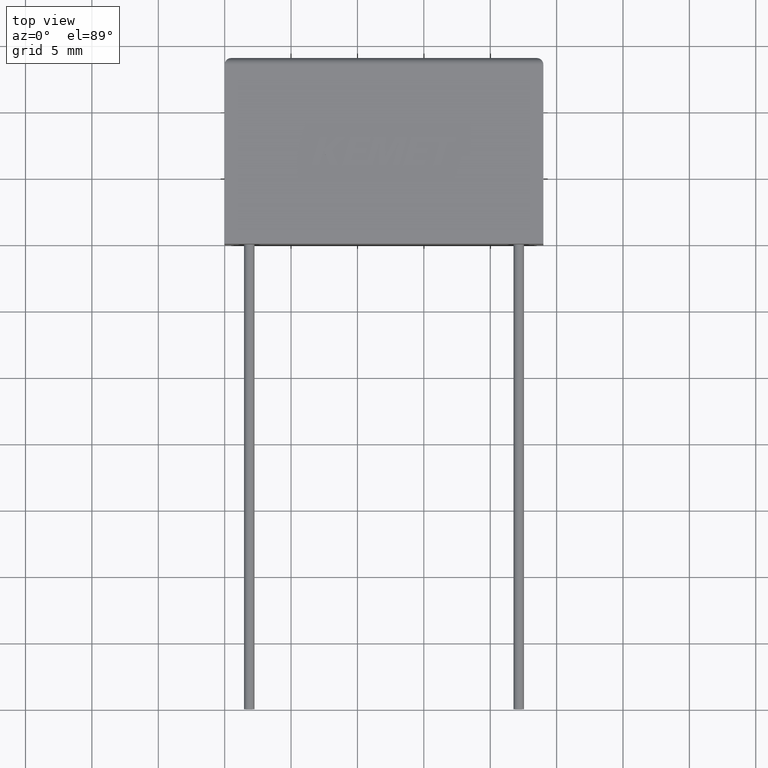
[diagram: clean part render]
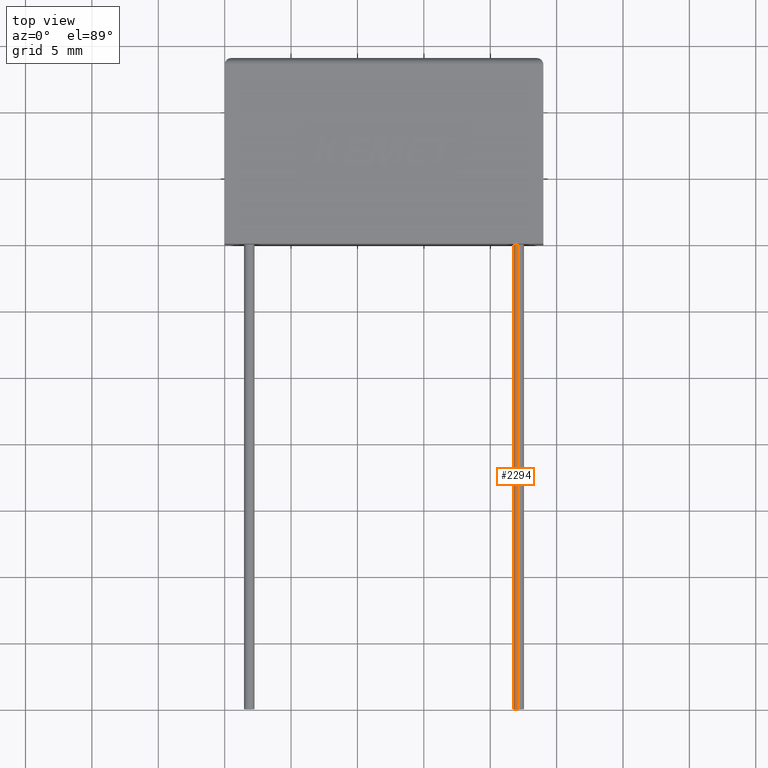
[diagram: same view with one face highlighted and labeled with its STEP entity id]
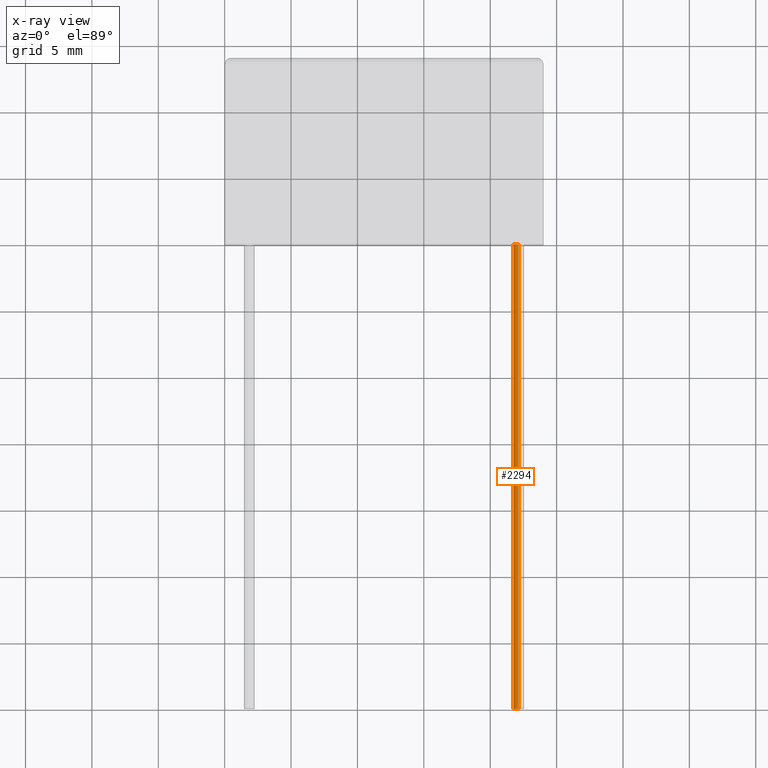
[diagram: x-ray of the same camera — body ghosted, the highlighted face saturated]
A machine part, top view. The second image highlights one B-rep face of the part: STEP entity #2294.
The next image is the same camera in x-ray: the body ghosted, the highlighted face saturated — about 0% of this face is hidden behind the body in this view.
In plain terms, the highlighted cylindrical surface (edge-blend (fillet) strip) has radius 0.4 mm, axis along (-0, 1, -0).
Its self-contained STEP definition (entity closure, byte-faithful):
#34 = CARTESIAN_POINT ( 'NONE',  ( 22.15000000000000200, 0.0000000000000000000, 3.800000000000000300 ) ) ;
#61 = CARTESIAN_POINT ( 'NONE',  ( 22.15000000000000200, 0.0000000000000000000, 4.200000000000000200 ) ) ;
#66 = AXIS2_PLACEMENT_3D ( 'NONE', #960, #1351, #1917 ) ;
#107 = CARTESIAN_POINT ( 'NONE',  ( 22.15000000000000200, -35.00000000000000000, 4.200000000000000200 ) ) ;
#168 = CARTESIAN_POINT ( 'NONE',  ( 22.15000000000000200, -35.00000000000000000, 3.800000000000000300 ) ) ;
#190 = VECTOR ( 'NONE', #404, 1000.000000000000000 ) ;
#404 = DIRECTION ( 'NONE',  ( -0.0000000000000000000, 1.000000000000000000, -0.0000000000000000000 ) ) ;
#431 = VECTOR ( 'NONE', #1911, 1000.000000000000000 ) ;
#584 = ORIENTED_EDGE ( 'NONE', *, *, #1234, .T. ) ;
#595 = DIRECTION ( 'NONE',  ( 0.0000000000000000000, 0.0000000000000000000, -1.000000000000000000 ) ) ;
#647 = VERTEX_POINT ( 'NONE', #705 ) ;
#680 = EDGE_LOOP ( 'NONE', ( #1134, #1246, #584, #1330 ) ) ;
#688 = VERTEX_POINT ( 'NONE', #61 ) ;
#705 = CARTESIAN_POINT ( 'NONE',  ( 22.15000000000000200, -35.00000000000000000, 3.399999999999999900 ) ) ;
#726 = LINE ( 'NONE', #1371, #190 ) ;
#770 = DIRECTION ( 'NONE',  ( -0.0000000000000000000, 1.000000000000000000, -0.0000000000000000000 ) ) ;
#811 = CARTESIAN_POINT ( 'NONE',  ( 22.15000000000000200, -35.00000000000000000, 4.200000000000000200 ) ) ;
#864 = LINE ( 'NONE', #811, #431 ) ;
#921 = EDGE_CURVE ( 'NONE', #647, #965, #726, .T. ) ;
#960 = CARTESIAN_POINT ( 'NONE',  ( 22.15000000000000200, -35.00000000000000000, 3.800000000000000300 ) ) ;
#965 = VERTEX_POINT ( 'NONE', #1597 ) ;
#982 = EDGE_CURVE ( 'NONE', #647, #1409, #1780, .T. ) ;
#1009 = AXIS2_PLACEMENT_3D ( 'NONE', #34, #1226, #1200 ) ;
#1134 = ORIENTED_EDGE ( 'NONE', *, *, #921, .F. ) ;
#1200 = DIRECTION ( 'NONE',  ( 0.0000000000000000000, 0.0000000000000000000, -1.000000000000000000 ) ) ;
#1226 = DIRECTION ( 'NONE',  ( -0.0000000000000000000, 1.000000000000000000, -0.0000000000000000000 ) ) ;
#1230 = AXIS2_PLACEMENT_3D ( 'NONE', #168, #770, #595 ) ;
#1234 = EDGE_CURVE ( 'NONE', #1409, #688, #864, .T. ) ;
#1246 = ORIENTED_EDGE ( 'NONE', *, *, #982, .T. ) ;
#1251 = CYLINDRICAL_SURFACE ( 'NONE', #66, 0.4000000000000001900 ) ;
#1330 = ORIENTED_EDGE ( 'NONE', *, *, #1650, .F. ) ;
#1351 = DIRECTION ( 'NONE',  ( -0.0000000000000000000, 1.000000000000000000, -0.0000000000000000000 ) ) ;
#1371 = CARTESIAN_POINT ( 'NONE',  ( 22.15000000000000200, -35.00000000000000000, 3.399999999999999900 ) ) ;
#1409 = VERTEX_POINT ( 'NONE', #107 ) ;
#1419 = CIRCLE ( 'NONE', #1009, 0.4000000000000006300 ) ;
#1440 = FACE_OUTER_BOUND ( 'NONE', #680, .T. ) ;
#1597 = CARTESIAN_POINT ( 'NONE',  ( 22.15000000000000200, 0.0000000000000000000, 3.399999999999999900 ) ) ;
#1650 = EDGE_CURVE ( 'NONE', #965, #688, #1419, .T. ) ;
#1780 = CIRCLE ( 'NONE', #1230, 0.4000000000000006300 ) ;
#1911 = DIRECTION ( 'NONE',  ( -0.0000000000000000000, 1.000000000000000000, -0.0000000000000000000 ) ) ;
#1917 = DIRECTION ( 'NONE',  ( 0.0000000000000000000, 0.0000000000000000000, 1.000000000000000000 ) ) ;
#2294 = ADVANCED_FACE ( 'NONE', ( #1440 ), #1251, .T. ) ;